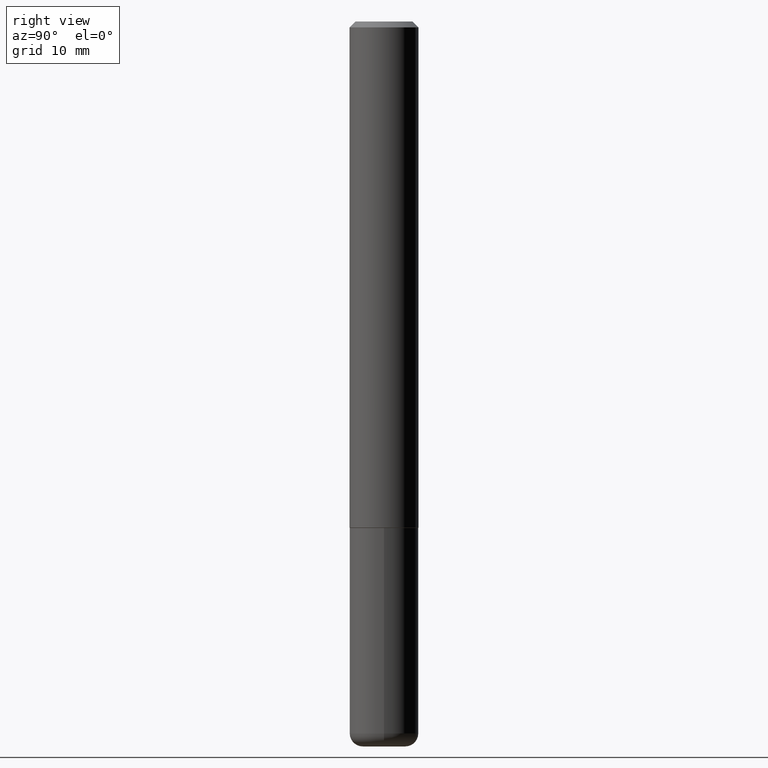
[diagram: clean part render]
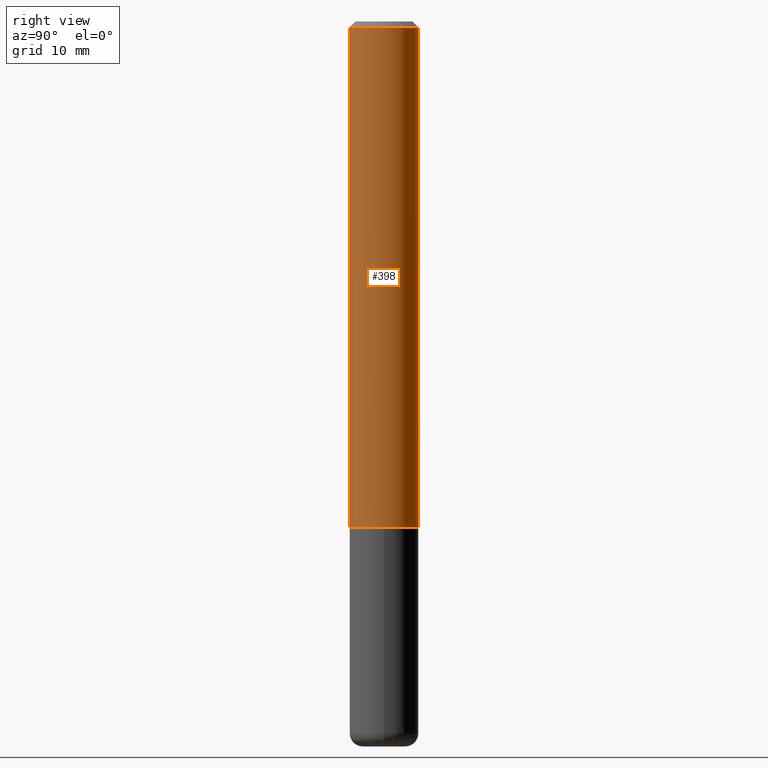
[diagram: same view with one face highlighted and labeled with its STEP entity id]
A machine part, right view. The second image highlights one B-rep face of the part: STEP entity #398.
In plain terms, the highlighted cylindrical surface (edge-blend (fillet) strip) has radius 2.9997 mm, axis along (-0, 0, 1).
Its self-contained STEP definition (entity closure, byte-faithful):
#1 = EDGE_CURVE ( 'NONE', #177, #316, #366, .T. ) ;
#3 = EDGE_CURVE ( 'NONE', #177, #330, #373, .T. ) ;
#4 = CARTESIAN_POINT ( 'NONE',  ( 0.000000000000000000, 0.000000000000000000, 0.000000000000000000 ) ) ;
#10 = EDGE_CURVE ( 'NONE', #330, #321, #289, .T. ) ;
#11 = DIRECTION ( 'NONE',  ( -2.449854300640825243E-29, 3.485201061175756275E-15, 1.000000000000000000 ) ) ;
#20 = CARTESIAN_POINT ( 'NONE',  ( 4.241432750699461520E-29, -6.033928597213587157E-15, -1.731300000000000283 ) ) ;
#32 = ORIENTED_EDGE ( 'NONE', *, *, #415, .T. ) ;
#48 = CYLINDRICAL_SURFACE ( 'NONE', #111, 0.1181000000000001354 ) ;
#79 = FACE_OUTER_BOUND ( 'NONE', #182, .T. ) ;
#89 = DIRECTION ( 'NONE',  ( -2.449854300640825243E-29, 3.485201061175756275E-15, 1.000000000000000000 ) ) ;
#97 = ORIENTED_EDGE ( 'NONE', *, *, #3, .F. ) ;
#111 = AXIS2_PLACEMENT_3D ( 'NONE', #4, #11, #332 ) ;
#114 = CARTESIAN_POINT ( 'NONE',  ( -8.246878922347070446E-16, -0.1181000000000062417, -1.731299999999999617 ) ) ;
#124 = ORIENTED_EDGE ( 'NONE', *, *, #10, .F. ) ;
#145 = CARTESIAN_POINT ( 'NONE',  ( -8.246878922347489529E-16, -0.1181000000000001354, 4.116022453248573214E-16 ) ) ;
#158 = AXIS2_PLACEMENT_3D ( 'NONE', #20, #89, #403 ) ;
#172 = DIRECTION ( 'NONE',  ( -2.449854300640825243E-29, 3.485201061175756670E-15, 1.000000000000000000 ) ) ;
#177 = VERTEX_POINT ( 'NONE', #114 ) ;
#180 = AXIS2_PLACEMENT_3D ( 'NONE', #402, #407, #374 ) ;
#182 = EDGE_LOOP ( 'NONE', ( #248, #32, #124, #97 ) ) ;
#220 = CARTESIAN_POINT ( 'NONE',  ( -8.102248135368175393E-16, -0.1181000000000001077, -0.01999999999999965347 ) ) ;
#230 = CARTESIAN_POINT ( 'NONE',  ( 8.391509709326791832E-16, 0.1181000000000001354, -4.116022453248573214E-16 ) ) ;
#232 = VECTOR ( 'NONE', #271, 39.37007874015748143 ) ;
#248 = ORIENTED_EDGE ( 'NONE', *, *, #1, .T. ) ;
#263 = LINE ( 'NONE', #230, #344 ) ;
#271 = DIRECTION ( 'NONE',  ( -2.449854300640825243E-29, 3.485201061175756670E-15, 1.000000000000000000 ) ) ;
#289 = CIRCLE ( 'NONE', #180, 0.1181000000000000383 ) ;
#316 = VERTEX_POINT ( 'NONE', #324 ) ;
#321 = VERTEX_POINT ( 'NONE', #387 ) ;
#324 = CARTESIAN_POINT ( 'NONE',  ( 8.391509709327008768E-16, 0.1180999999999941957, -1.731300000000000727 ) ) ;
#330 = VERTEX_POINT ( 'NONE', #220 ) ;
#332 = DIRECTION ( 'NONE',  ( -6.982962677686265922E-15, -1.000000000000000000, 3.485201061175756670E-15 ) ) ;
#344 = VECTOR ( 'NONE', #172, 39.37007874015748143 ) ;
#366 = CIRCLE ( 'NONE', #158, 0.1181000000000002187 ) ;
#373 = LINE ( 'NONE', #145, #232 ) ;
#374 = DIRECTION ( 'NONE',  ( -6.982962677686265922E-15, -1.000000000000000000, 3.469747663417776213E-15 ) ) ;
#387 = CARTESIAN_POINT ( 'NONE',  ( 8.246878922347486570E-16, 0.1180999999999999689, -0.02000000000000047226 ) ) ;
#398 = ADVANCED_FACE ( 'NONE', ( #79 ), #48, .T. ) ;
#402 = CARTESIAN_POINT ( 'NONE',  ( 4.899708601281666006E-31, -6.970402122351533307E-17, -0.02000000000000006287 ) ) ;
#403 = DIRECTION ( 'NONE',  ( -6.982962677686265922E-15, -1.000000000000000000, 4.626330217890360659E-15 ) ) ;
#407 = DIRECTION ( 'NONE',  ( -2.449854300640825243E-29, 3.485201061175756275E-15, 1.000000000000000000 ) ) ;
#415 = EDGE_CURVE ( 'NONE', #316, #321, #263, .T. ) ;